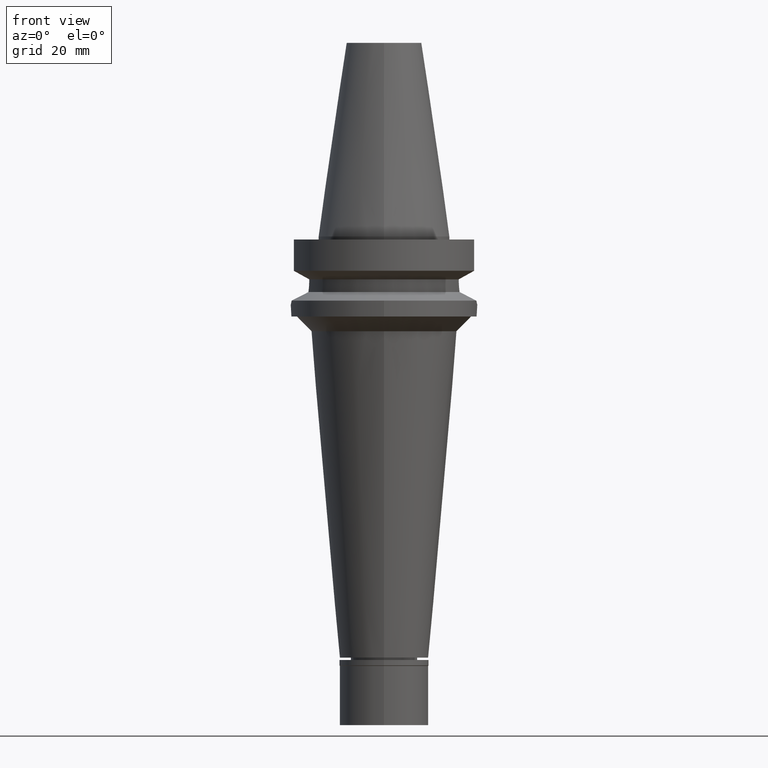
[diagram: clean part render]
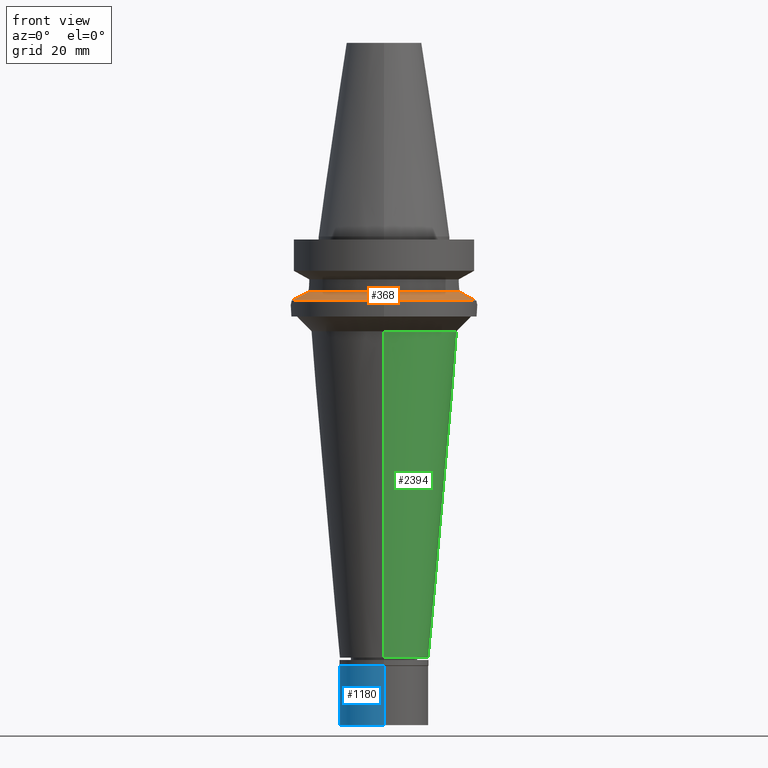
[diagram: same view with three faces highlighted in distinct colors, each labeled with its STEP entity id]
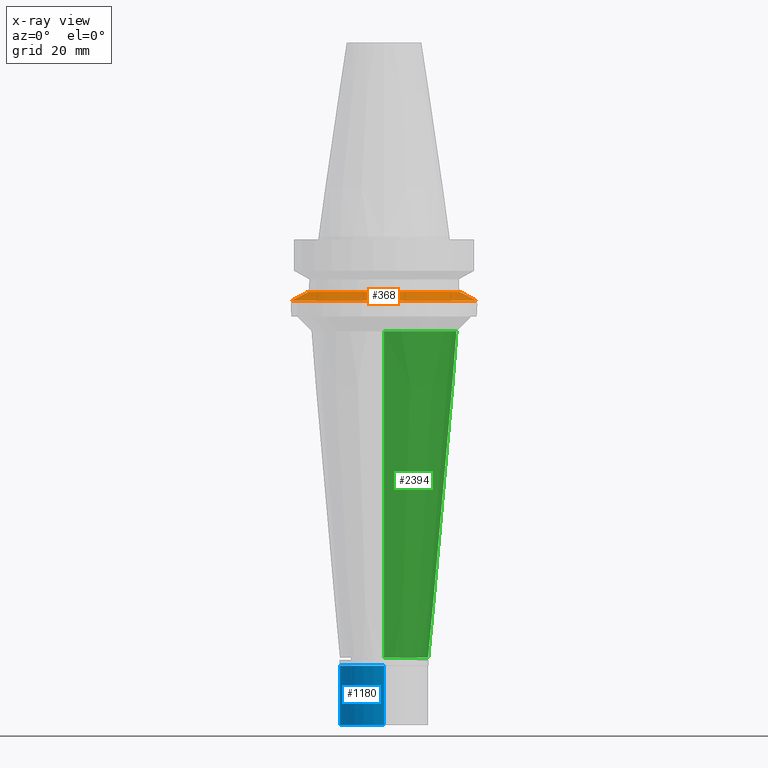
[diagram: x-ray of the same camera — body ghosted, the three highlighted faces saturated]
A machine part, front view with three faces highlighted in distinct colors.
The next image is the same camera in x-ray (body ghosted, the three faces saturated) — at least one of them is partly hidden behind the body in this view.
Their STEP definitions:

[orange] entity #368 — the highlighted conical surface has half-angle 60 deg.
#67 = B_SPLINE_CURVE_WITH_KNOTS ( 'NONE', 3,
 ( #2939, #488, #769, #531, #1512, #2662, #467, #1449, #230, #2289, #1052, #3028, #863, #216, #2639, #2625 ),
 .UNSPECIFIED., .F., .F.,
 ( 4, 2, 2, 1, 1, 1, 1, 2, 2, 4 ),
 ( 0.0000000000000000000, 0.2499999999999963918, 0.3749999999999946709, 0.4374999999999938383, 0.4687499999999928946, 0.4843749999999918954, 0.4921874999999920619, 0.4960937499999927280, 0.4999999999999933387, 1.000000000000000000 ),
 .UNSPECIFIED. ) ;
#195 = CARTESIAN_POINT ( 'NONE',  ( 0.0000000000000000000, 0.0000000000000000000, -21.63449434733000132 ) ) ;
#216 = CARTESIAN_POINT ( 'NONE',  ( -27.72542032119476829, -6.397787017355759609, -19.87203033955967513 ) ) ;
#230 = CARTESIAN_POINT ( 'NONE',  ( -28.70587566557245296, -5.949413453912399063, -20.37289609757314324 ) ) ;
#299 = ORIENTED_EDGE ( 'NONE', *, *, #507, .F. ) ;
#311 = CARTESIAN_POINT ( 'NONE',  ( 26.70215822531835315, -6.750114391386322410, -19.34856662920262238 ) ) ;
#364 = ORIENTED_EDGE ( 'NONE', *, *, #1895, .F. ) ;
#368 = ADVANCED_FACE ( 'NONE', ( #867 ), #1546, .T. ) ;
#449 = CARTESIAN_POINT ( 'NONE',  ( 31.17899877608999759, -4.485536235554000051, -21.63449434733000132 ) ) ;
#467 = CARTESIAN_POINT ( 'NONE',  ( -29.03084025621368269, -5.794793314339117707, -20.53890626791873331 ) ) ;
#478 = AXIS2_PLACEMENT_3D ( 'NONE', #1691, #1212, #2900 ) ;
#488 = CARTESIAN_POINT ( 'NONE',  ( -30.82496552724909122, -4.754130161038220947, -21.45425815850477136 ) ) ;
#507 = EDGE_CURVE ( 'NONE', #968, #2879, #3011, .T. ) ;
#521 = DIRECTION ( 'NONE',  ( 0.0000000000000000000, -1.000000000000000000, 0.0000000000000000000 ) ) ;
#524 = CIRCLE ( 'NONE', #478, 31.50000000000001421 ) ;
#531 = CARTESIAN_POINT ( 'NONE',  ( -29.78676957609832243, -5.397306293919974074, -20.92492494597458830 ) ) ;
#544 = CARTESIAN_POINT ( 'NONE',  ( 0.0000000000000000000, 0.0000000000000000000, -20.19111867435999841 ) ) ;
#569 = EDGE_CURVE ( 'NONE', #2879, #2372, #67, .T. ) ;
#570 = DIRECTION ( 'NONE',  ( 0.0000000000000000000, 0.0000000000000000000, 1.000000000000000000 ) ) ;
#637 = CARTESIAN_POINT ( 'NONE',  ( 28.28552704200448531, -6.138958294274154959, -20.15830002520382180 ) ) ;
#769 = CARTESIAN_POINT ( 'NONE',  ( -30.43265407114605026, -5.016892109407281808, -21.25443232370989222 ) ) ;
#863 = CARTESIAN_POINT ( 'NONE',  ( -28.60225798710769141, -5.997168067687799642, -20.31996246445449827 ) ) ;
#867 = FACE_OUTER_BOUND ( 'NONE', #1396, .T. ) ;
#874 = CARTESIAN_POINT ( 'NONE',  ( 27.74301800859991118, -6.364884219568501145, -19.88114124575123398 ) ) ;
#880 = AXIS2_PLACEMENT_3D ( 'NONE', #195, #1857, #1160 ) ;
#893 = CARTESIAN_POINT ( 'NONE',  ( 28.65633191492069543, -5.972243074551203179, -20.34767592839260075 ) ) ;
#921 = CARTESIAN_POINT ( 'NONE',  ( 29.65996424530777631, -5.506728635295764285, -20.86030170454159816 ) ) ;
#926 = CIRCLE ( 'NONE', #1596, 26.49999999999998224 ) ;
#968 = VERTEX_POINT ( 'NONE', #2150 ) ;
#1052 = CARTESIAN_POINT ( 'NONE',  ( -28.62711069943992470, -5.985776198111143032, -20.33265852239552274 ) ) ;
#1134 = ORIENTED_EDGE ( 'NONE', *, *, #2130, .F. ) ;
#1160 = DIRECTION ( 'NONE',  ( 0.0000000000000000000, -1.000000000000000000, 0.0000000000000000000 ) ) ;
#1168 = CARTESIAN_POINT ( 'NONE',  ( 28.48705667065478764, -6.049466865270531457, -20.26122213210803835 ) ) ;
#1212 = DIRECTION ( 'NONE',  ( 0.0000000000000000000, 0.0000000000000000000, -1.000000000000000000 ) ) ;
#1319 = B_SPLINE_CURVE_WITH_KNOTS ( 'NONE', 3,
 ( #2491, #2237, #311, #1615, #874, #1867, #637, #1168, #2133, #3075, #893, #3110, #921, #2627, #449 ),
 .UNSPECIFIED., .F., .F.,
 ( 4, 2, 2, 1, 1, 1, 2, 2, 4 ),
 ( 0.0000000000000000000, 0.2499999999999930611, 0.3749999999999892863, 0.4374999999999873435, 0.4687499999999873990, 0.4843749999999873435, 0.4921874999999876210, 0.4999999999999878986, 1.000000000000000000 ),
 .UNSPECIFIED. ) ;
#1335 = DIRECTION ( 'NONE',  ( 0.0000000000000000000, 0.0000000000000000000, -1.000000000000000000 ) ) ;
#1396 = EDGE_LOOP ( 'NONE', ( #299, #1134, #364, #2751, #2941 ) ) ;
#1449 = CARTESIAN_POINT ( 'NONE',  ( -28.81524386551601680, -5.898209750701584042, -20.42876798718874909 ) ) ;
#1494 = VERTEX_POINT ( 'NONE', #2858 ) ;
#1512 = CARTESIAN_POINT ( 'NONE',  ( -29.56190519260020722, -5.521818136318563219, -20.81013551602900336 ) ) ;
#1516 = CARTESIAN_POINT ( 'NONE',  ( 25.53175183775000079, -7.097862220092999941, -18.74774300138999905 ) ) ;
#1546 = CONICAL_SURFACE ( 'NONE', #2754, 29.00000000000000000, 1.047197551196400456 ) ;
#1596 = AXIS2_PLACEMENT_3D ( 'NONE', #1798, #570, #2763 ) ;
#1615 = CARTESIAN_POINT ( 'NONE',  ( 27.49027690533451818, -6.463065097890634547, -19.75192906158679307 ) ) ;
#1691 = CARTESIAN_POINT ( 'NONE',  ( 0.0000000000000000000, 0.0000000000000000000, -21.63449434733000132 ) ) ;
#1798 = CARTESIAN_POINT ( 'NONE',  ( 0.0000000000000000000, 0.0000000000000000000, -18.74774300138999905 ) ) ;
#1816 = EDGE_CURVE ( 'NONE', #2372, #2786, #926, .T. ) ;
#1857 = DIRECTION ( 'NONE',  ( 0.0000000000000000000, 0.0000000000000000000, -1.000000000000000000 ) ) ;
#1867 = CARTESIAN_POINT ( 'NONE',  ( 28.10718197838794552, -6.214745426874604739, -20.06720534644217935 ) ) ;
#1895 = EDGE_CURVE ( 'NONE', #2786, #1494, #1319, .T. ) ;
#2041 = CARTESIAN_POINT ( 'NONE',  ( -31.17899877608999759, -4.485536235554000051, -21.63449434733000132 ) ) ;
#2081 = CARTESIAN_POINT ( 'NONE',  ( -25.53175183775000079, -7.097862220092999941, -18.74774300138999905 ) ) ;
#2130 = EDGE_CURVE ( 'NONE', #1494, #968, #524, .T. ) ;
#2133 = CARTESIAN_POINT ( 'NONE',  ( 28.58618658192103723, -6.004475021274326529, -20.31184964848478458 ) ) ;
#2150 = CARTESIAN_POINT ( 'NONE',  ( 0.0000000000000000000, -31.50000000000000000, -21.63449434733000132 ) ) ;
#2237 = CARTESIAN_POINT ( 'NONE',  ( 26.13688527834753472, -6.931521406652682238, -19.05862874982803490 ) ) ;
#2289 = CARTESIAN_POINT ( 'NONE',  ( -28.65079906445198077, -5.974886824000520846, -20.34475981737326933 ) ) ;
#2372 = VERTEX_POINT ( 'NONE', #2081 ) ;
#2491 = CARTESIAN_POINT ( 'NONE',  ( 25.53175183775000079, -7.097862220092999941, -18.74774300138999905 ) ) ;
#2625 = CARTESIAN_POINT ( 'NONE',  ( -25.53175183775000079, -7.097862220092999941, -18.74774300138999905 ) ) ;
#2627 = CARTESIAN_POINT ( 'NONE',  ( 30.49155498473288262, -5.007078285841039644, -21.28452086491701678 ) ) ;
#2639 = CARTESIAN_POINT ( 'NONE',  ( -26.70418400181174690, -6.775580708626685045, -19.35007700967300437 ) ) ;
#2662 = CARTESIAN_POINT ( 'NONE',  ( -29.21025428962974502, -5.704485272239825377, -20.63054915725575356 ) ) ;
#2751 = ORIENTED_EDGE ( 'NONE', *, *, #1816, .F. ) ;
#2754 = AXIS2_PLACEMENT_3D ( 'NONE', #544, #1335, #521 ) ;
#2763 = DIRECTION ( 'NONE',  ( -0.9634623335000935818, -0.2678438573619981722, 0.0000000000000000000 ) ) ;
#2786 = VERTEX_POINT ( 'NONE', #1516 ) ;
#2858 = CARTESIAN_POINT ( 'NONE',  ( 31.17899877608999759, -4.485536235554000051, -21.63449434733000132 ) ) ;
#2879 = VERTEX_POINT ( 'NONE', #2041 ) ;
#2900 = DIRECTION ( 'NONE',  ( 0.9898094849552905306, -0.1423979757318985240, 0.0000000000000000000 ) ) ;
#2939 = CARTESIAN_POINT ( 'NONE',  ( -31.17899877608999759, -4.485536235554000051, -21.63449434733000132 ) ) ;
#2941 = ORIENTED_EDGE ( 'NONE', *, *, #569, .F. ) ;
#3011 = CIRCLE ( 'NONE', #880, 31.50000000000000000 ) ;
#3028 = CARTESIAN_POINT ( 'NONE',  ( -28.61129976556766152, -5.993029578398560986, -20.32458146603351778 ) ) ;
#3075 = CARTESIAN_POINT ( 'NONE',  ( 28.62832049323680295, -5.985142415639562508, -20.33336911552476778 ) ) ;
#3110 = CARTESIAN_POINT ( 'NONE',  ( 28.66898065644760152, -5.966399313622371636, -20.35413636776569035 ) ) ;

[blue] entity #1180 — the highlighted cylindrical surface (partial cylindrical patch) has radius 15 mm, axis along (0, 0, -1).
#14 = VECTOR ( 'NONE', #1711, 1000.000000000000000 ) ;
#34 = CARTESIAN_POINT ( 'NONE',  ( 0.0000000000000000000, -15.00000000000000000, -2.000000000000000000 ) ) ;
#53 = CARTESIAN_POINT ( 'NONE',  ( 0.0000000000000000000, 0.0000000000000000000, 0.0000000000000000000 ) ) ;
#58 = EDGE_LOOP ( 'NONE', ( #243, #1427, #305, #2572 ) ) ;
#101 = CARTESIAN_POINT ( 'NONE',  ( 0.0000000000000000000, -15.00000000000000000, -22.00000000000000000 ) ) ;
#173 = AXIS2_PLACEMENT_3D ( 'NONE', #53, #1695, #1963 ) ;
#218 = CIRCLE ( 'NONE', #3122, 15.00000000000000000 ) ;
#239 = EDGE_CURVE ( 'NONE', #1037, #1747, #2720, .T. ) ;
#243 = ORIENTED_EDGE ( 'NONE', *, *, #3121, .T. ) ;
#268 = FACE_OUTER_BOUND ( 'NONE', #58, .T. ) ;
#305 = ORIENTED_EDGE ( 'NONE', *, *, #312, .T. ) ;
#312 = EDGE_CURVE ( 'NONE', #1637, #1037, #218, .T. ) ;
#363 = DIRECTION ( 'NONE',  ( 0.0000000000000000000, 0.0000000000000000000, -1.000000000000000000 ) ) ;
#623 = DIRECTION ( 'NONE',  ( 0.0000000000000000000, 0.0000000000000000000, 1.000000000000000000 ) ) ;
#1021 = DIRECTION ( 'NONE',  ( 0.0000000000000000000, 1.000000000000000000, 0.0000000000000000000 ) ) ;
#1024 = DIRECTION ( 'NONE',  ( 0.0000000000000000000, -1.000000000000000000, 0.0000000000000000000 ) ) ;
#1037 = VERTEX_POINT ( 'NONE', #2137 ) ;
#1180 = ADVANCED_FACE ( 'NONE', ( #268 ), #1761, .T. ) ;
#1427 = ORIENTED_EDGE ( 'NONE', *, *, #1702, .F. ) ;
#1637 = VERTEX_POINT ( 'NONE', #34 ) ;
#1695 = DIRECTION ( 'NONE',  ( 0.0000000000000000000, 0.0000000000000000000, -1.000000000000000000 ) ) ;
#1699 = VECTOR ( 'NONE', #363, 1000.000000000000000 ) ;
#1702 = EDGE_CURVE ( 'NONE', #1637, #2734, #2461, .T. ) ;
#1711 = DIRECTION ( 'NONE',  ( 0.0000000000000000000, 0.0000000000000000000, -1.000000000000000000 ) ) ;
#1747 = VERTEX_POINT ( 'NONE', #2732 ) ;
#1761 = CYLINDRICAL_SURFACE ( 'NONE', #173, 15.00000000000000000 ) ;
#1910 = AXIS2_PLACEMENT_3D ( 'NONE', #2251, #623, #1021 ) ;
#1943 = CARTESIAN_POINT ( 'NONE',  ( 0.0000000000000000000, -15.00000000000000000, -2.000000000000000000 ) ) ;
#1963 = DIRECTION ( 'NONE',  ( 0.0000000000000000000, -1.000000000000000000, 0.0000000000000000000 ) ) ;
#2137 = CARTESIAN_POINT ( 'NONE',  ( 0.0000000000000000000, 15.00000000000000000, -2.000000000000000000 ) ) ;
#2251 = CARTESIAN_POINT ( 'NONE',  ( 0.0000000000000000000, 0.0000000000000000000, -22.00000000000000000 ) ) ;
#2461 = LINE ( 'NONE', #1943, #14 ) ;
#2543 = CARTESIAN_POINT ( 'NONE',  ( 0.0000000000000000000, 15.00000000000000000, -2.000000000000000000 ) ) ;
#2572 = ORIENTED_EDGE ( 'NONE', *, *, #239, .T. ) ;
#2717 = DIRECTION ( 'NONE',  ( 0.0000000000000000000, 0.0000000000000000000, -1.000000000000000000 ) ) ;
#2720 = LINE ( 'NONE', #2543, #1699 ) ;
#2732 = CARTESIAN_POINT ( 'NONE',  ( 0.0000000000000000000, 15.00000000000000000, -22.00000000000000000 ) ) ;
#2734 = VERTEX_POINT ( 'NONE', #101 ) ;
#2812 = CIRCLE ( 'NONE', #1910, 15.00000000000000000 ) ;
#2932 = CARTESIAN_POINT ( 'NONE',  ( 0.0000000000000000000, 0.0000000000000000000, -2.000000000000000000 ) ) ;
#3121 = EDGE_CURVE ( 'NONE', #1747, #2734, #2812, .T. ) ;
#3122 = AXIS2_PLACEMENT_3D ( 'NONE', #2932, #2717, #1024 ) ;

[green] entity #2394 — the highlighted conical surface has half-angle 5 deg.
#125 = VECTOR ( 'NONE', #528, 1000.000000000000000 ) ;
#159 = CARTESIAN_POINT ( 'NONE',  ( 0.0000000000000000000, -24.64125072056000221, -32.00000000000000000 ) ) ;
#167 = ORIENTED_EDGE ( 'NONE', *, *, #1233, .T. ) ;
#172 = DIRECTION ( 'NONE',  ( 0.0000000000000000000, 0.08715574274767391716, -0.9961946980917442129 ) ) ;
#200 = CARTESIAN_POINT ( 'NONE',  ( 0.0000000000000000000, 24.64125072056000221, -32.00000000000000000 ) ) ;
#289 = CARTESIAN_POINT ( 'NONE',  ( 0.0000000000000000000, 0.0000000000000000000, -32.00000000000000000 ) ) ;
#374 = ORIENTED_EDGE ( 'NONE', *, *, #2017, .T. ) ;
#528 = DIRECTION ( 'NONE',  ( 0.0000000000000000000, -0.08715574274767391716, -0.9961946980917442129 ) ) ;
#693 = ORIENTED_EDGE ( 'NONE', *, *, #2761, .F. ) ;
#768 = LINE ( 'NONE', #2434, #125 ) ;
#811 = CARTESIAN_POINT ( 'NONE',  ( 0.0000000000000000000, 0.0000000000000000000, -142.1999999999999886 ) ) ;
#929 = VECTOR ( 'NONE', #172, 1000.000000000000000 ) ;
#1072 = EDGE_CURVE ( 'NONE', #2519, #1527, #768, .T. ) ;
#1233 = EDGE_CURVE ( 'NONE', #2361, #1527, #2762, .T. ) ;
#1339 = CARTESIAN_POINT ( 'NONE',  ( 0.0000000000000000000, -15.00000000000000000, -142.1999999999999886 ) ) ;
#1348 = CONICAL_SURFACE ( 'NONE', #3076, 19.82062536028000110, 0.08726646259969973729 ) ;
#1352 = CIRCLE ( 'NONE', #2357, 24.64125072056000221 ) ;
#1395 = LINE ( 'NONE', #159, #929 ) ;
#1527 = VERTEX_POINT ( 'NONE', #1644 ) ;
#1644 = CARTESIAN_POINT ( 'NONE',  ( 0.0000000000000000000, 15.00000000000000000, -142.1999999999999886 ) ) ;
#1764 = DIRECTION ( 'NONE',  ( 0.0000000000000000000, 0.0000000000000000000, 1.000000000000000000 ) ) ;
#1860 = EDGE_LOOP ( 'NONE', ( #693, #374, #167, #2337 ) ) ;
#1862 = DIRECTION ( 'NONE',  ( 0.0000000000000000000, 1.000000000000000000, 0.0000000000000000000 ) ) ;
#1881 = CARTESIAN_POINT ( 'NONE',  ( 0.0000000000000000000, -24.64125072056000221, -32.00000000000000000 ) ) ;
#1977 = VERTEX_POINT ( 'NONE', #1881 ) ;
#2005 = AXIS2_PLACEMENT_3D ( 'NONE', #811, #2288, #2479 ) ;
#2017 = EDGE_CURVE ( 'NONE', #1977, #2361, #1395, .T. ) ;
#2066 = DIRECTION ( 'NONE',  ( 0.0000000000000000000, 0.0000000000000000000, 1.000000000000000000 ) ) ;
#2288 = DIRECTION ( 'NONE',  ( 0.0000000000000000000, 0.0000000000000000000, 1.000000000000000000 ) ) ;
#2337 = ORIENTED_EDGE ( 'NONE', *, *, #1072, .F. ) ;
#2357 = AXIS2_PLACEMENT_3D ( 'NONE', #289, #1764, #2724 ) ;
#2361 = VERTEX_POINT ( 'NONE', #1339 ) ;
#2394 = ADVANCED_FACE ( 'NONE', ( #2806 ), #1348, .T. ) ;
#2434 = CARTESIAN_POINT ( 'NONE',  ( 0.0000000000000000000, 24.64125072056000221, -32.00000000000000000 ) ) ;
#2479 = DIRECTION ( 'NONE',  ( 0.0000000000000000000, -1.000000000000000000, 0.0000000000000000000 ) ) ;
#2519 = VERTEX_POINT ( 'NONE', #200 ) ;
#2724 = DIRECTION ( 'NONE',  ( 0.0000000000000000000, -1.000000000000000000, 0.0000000000000000000 ) ) ;
#2761 = EDGE_CURVE ( 'NONE', #1977, #2519, #1352, .T. ) ;
#2762 = CIRCLE ( 'NONE', #2005, 15.00000000000000000 ) ;
#2806 = FACE_OUTER_BOUND ( 'NONE', #1860, .T. ) ;
#3070 = CARTESIAN_POINT ( 'NONE',  ( 0.0000000000000000000, 0.0000000000000000000, -87.09999999999999432 ) ) ;
#3076 = AXIS2_PLACEMENT_3D ( 'NONE', #3070, #2066, #1862 ) ;